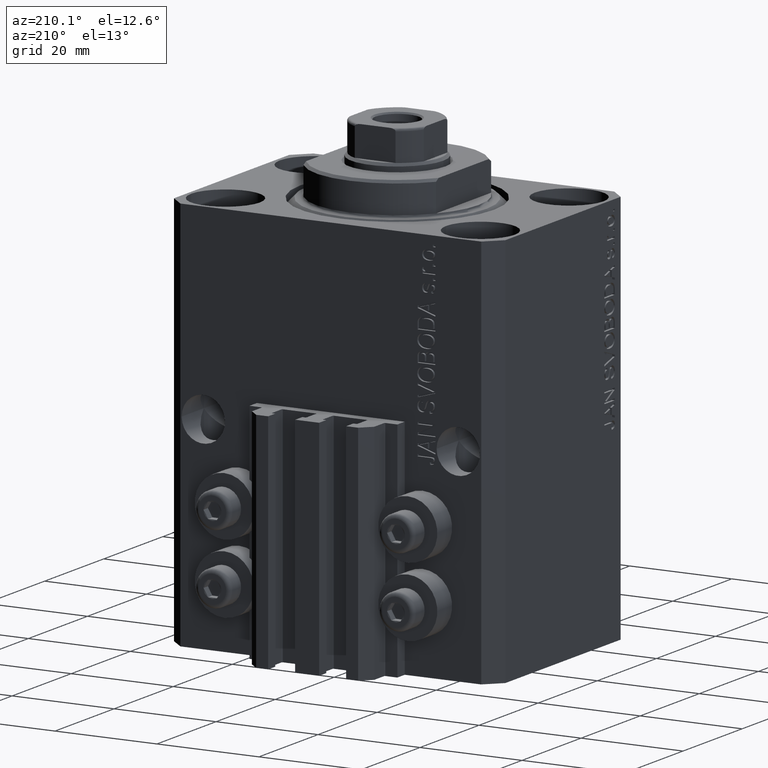
[diagram: clean part render]
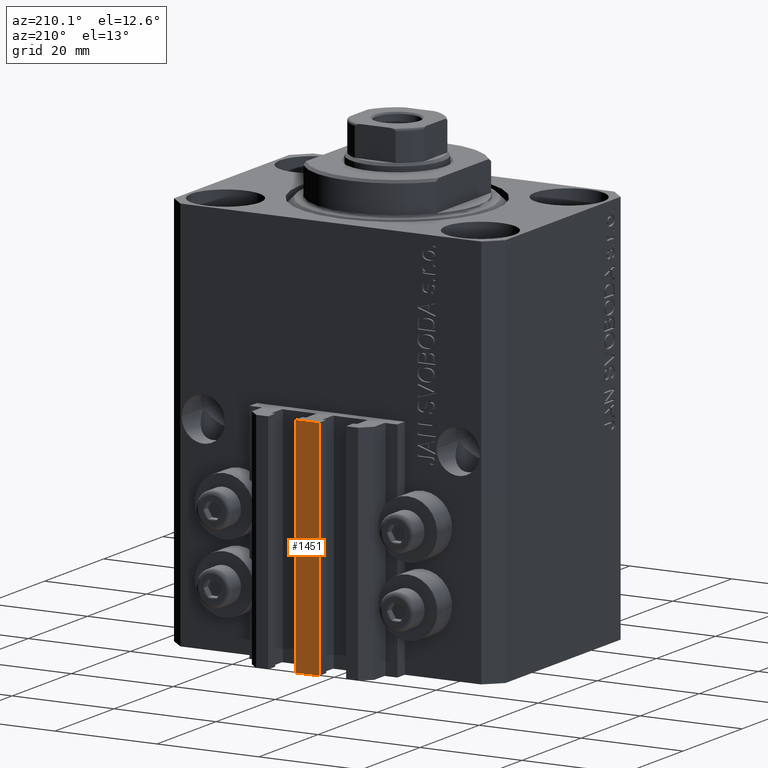
[diagram: same view with one face highlighted and labeled with its STEP entity id]
A machine part, auxiliary view. The second image highlights one B-rep face of the part: STEP entity #1451.
In plain terms, the highlighted planar face has unit normal (0, -1, 0).
Its self-contained STEP definition (entity closure, byte-faithful):
#440 = CARTESIAN_POINT ( 'NONE',  ( -2.350000000000003197, 30.49999999999949907, -33.00000000000000000 ) ) ;
#647 = PLANE ( 'NONE',  #7667 ) ;
#1451 = ADVANCED_FACE ( 'NONE', ( #4693 ), #647, .F. ) ;
#2368 = LINE ( 'NONE', #31250, #16305 ) ;
#3152 = LINE ( 'NONE', #17719, #43633 ) ;
#4693 = FACE_OUTER_BOUND ( 'NONE', #5767, .T. ) ;
#5767 = EDGE_LOOP ( 'NONE', ( #17265, #35052, #32934, #45795 ) ) ;
#5802 = EDGE_CURVE ( 'NONE', #46655, #37300, #3152, .T. ) ;
#7667 = AXIS2_PLACEMENT_3D ( 'NONE', #15913, #15202, #19715 ) ;
#8437 = VERTEX_POINT ( 'NONE', #43002 ) ;
#8511 = EDGE_CURVE ( 'NONE', #37300, #23327, #43479, .T. ) ;
#9289 = DIRECTION ( 'NONE',  ( 0.000000000000000000, 0.000000000000000000, 1.000000000000000000 ) ) ;
#10648 = CARTESIAN_POINT ( 'NONE',  ( -2.350000000000003197, 30.49999999999949907, -77.00000000000000000 ) ) ;
#14822 = EDGE_CURVE ( 'NONE', #8437, #23327, #2368, .T. ) ;
#15202 = DIRECTION ( 'NONE',  ( 0.000000000000000000, -1.000000000000000000, 0.000000000000000000 ) ) ;
#15913 = CARTESIAN_POINT ( 'NONE',  ( -2.350000000000003197, 30.49999999999949907, -77.00000000000000000 ) ) ;
#16305 = VECTOR ( 'NONE', #9289, 1000.000000000000000 ) ;
#17265 = ORIENTED_EDGE ( 'NONE', *, *, #8511, .T. ) ;
#17719 = CARTESIAN_POINT ( 'NONE',  ( -2.350000000000003197, 30.49999999999949907, -77.00000000000000000 ) ) ;
#19715 = DIRECTION ( 'NONE',  ( 0.000000000000000000, -0.000000000000000000, -1.000000000000000000 ) ) ;
#21077 = CARTESIAN_POINT ( 'NONE',  ( 2.349999999999999645, 30.49999999999949907, -33.00000000000000000 ) ) ;
#21636 = DIRECTION ( 'NONE',  ( 1.000000000000000000, 0.000000000000000000, 0.000000000000000000 ) ) ;
#23187 = CARTESIAN_POINT ( 'NONE',  ( -2.350000000000003197, 30.49999999999949907, -77.00000000000000000 ) ) ;
#23327 = VERTEX_POINT ( 'NONE', #21077 ) ;
#25098 = DIRECTION ( 'NONE',  ( 0.000000000000000000, 0.000000000000000000, 1.000000000000000000 ) ) ;
#31250 = CARTESIAN_POINT ( 'NONE',  ( 2.349999999999999645, 30.49999999999949907, -77.00000000000000000 ) ) ;
#31502 = VECTOR ( 'NONE', #36064, 1000.000000000000000 ) ;
#32934 = ORIENTED_EDGE ( 'NONE', *, *, #44665, .F. ) ;
#35052 = ORIENTED_EDGE ( 'NONE', *, *, #14822, .F. ) ;
#36064 = DIRECTION ( 'NONE',  ( 1.000000000000000000, 0.000000000000000000, 0.000000000000000000 ) ) ;
#36314 = VECTOR ( 'NONE', #21636, 1000.000000000000000 ) ;
#37300 = VERTEX_POINT ( 'NONE', #440 ) ;
#39293 = LINE ( 'NONE', #10648, #36314 ) ;
#39898 = CARTESIAN_POINT ( 'NONE',  ( -2.350000000000003197, 30.49999999999949907, -33.00000000000000000 ) ) ;
#43002 = CARTESIAN_POINT ( 'NONE',  ( 2.349999999999999645, 30.49999999999949907, -77.00000000000000000 ) ) ;
#43479 = LINE ( 'NONE', #39898, #31502 ) ;
#43633 = VECTOR ( 'NONE', #25098, 1000.000000000000000 ) ;
#44665 = EDGE_CURVE ( 'NONE', #46655, #8437, #39293, .T. ) ;
#45795 = ORIENTED_EDGE ( 'NONE', *, *, #5802, .T. ) ;
#46655 = VERTEX_POINT ( 'NONE', #23187 ) ;